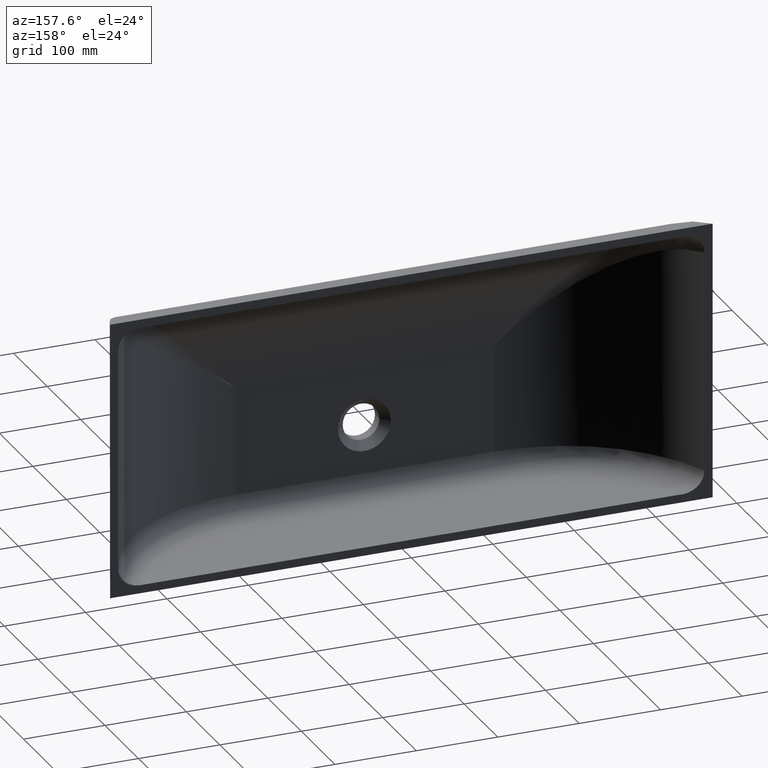
[diagram: clean part render]
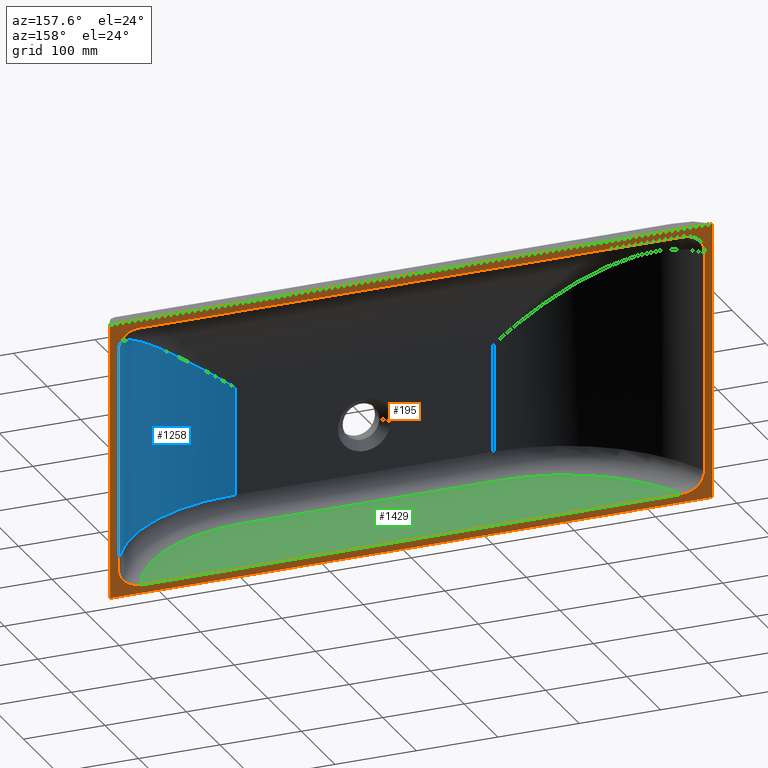
[diagram: same view with three faces highlighted in distinct colors, each labeled with its STEP entity id]
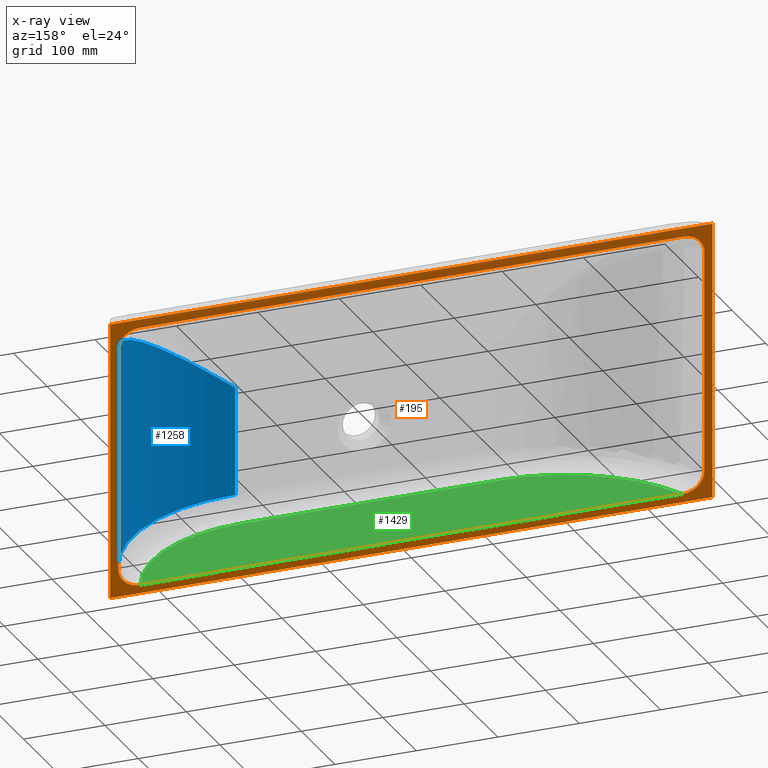
[diagram: x-ray of the same camera — body ghosted, the three highlighted faces saturated]
A machine part, auxiliary view with three faces highlighted in distinct colors.
The next image is the same camera in x-ray (body ghosted, the three faces saturated) — at least one of them is partly hidden behind the body in this view.
Their STEP definitions:

[orange] entity #195 — the highlighted planar face has unit normal (0, 1, 0).
#21 = LINE ( 'NONE', #472, #1221 ) ;
#27 = FACE_BOUND ( 'NONE', #1143, .T. ) ;
#29 = CARTESIAN_POINT ( 'NONE',  ( 348.3895411528305317, -0.0000000000000000000, -80.62143452831799095 ) ) ;
#38 = CARTESIAN_POINT ( 'NONE',  ( 359.0686564458361545, -0.0000000000000000000, -66.76503196918336869 ) ) ;
#41 = CARTESIAN_POINT ( 'NONE',  ( 355.1200221693183607, -0.0000000000000000000, 225.0966133933005437 ) ) ;
#46 = VECTOR ( 'NONE', #1389, 1000.000000000000000 ) ;
#50 = CARTESIAN_POINT ( 'NONE',  ( 342.5883606983367713, 0.0000000000000000000, 233.6839331609355384 ) ) ;
#62 = CARTESIAN_POINT ( 'NONE',  ( -359.0399139386469187, 0.0000000000000000000, -66.70083775692104666 ) ) ;
#72 = CARTESIAN_POINT ( 'NONE',  ( -351.1611666309310067, -0.0000000000000000000, -78.58841101999801992 ) ) ;
#79 = ORIENTED_EDGE ( 'NONE', *, *, #896, .T. ) ;
#98 = CARTESIAN_POINT ( 'NONE',  ( -343.3290508111766712, -0.0000000000000000000, 233.4342823738736854 ) ) ;
#102 = EDGE_CURVE ( 'NONE', #196, #333, #1214, .T. ) ;
#104 = AXIS2_PLACEMENT_3D ( 'NONE', #263, #710, #1164 ) ;
#105 = CARTESIAN_POINT ( 'NONE',  ( -357.6648853119097566, 0.0000000000000000000, 220.9878644566088326 ) ) ;
#140 = CARTESIAN_POINT ( 'NONE',  ( 342.6761017257804269, 0.0000000000000000000, -83.38376121986615885 ) ) ;
#147 = CARTESIAN_POINT ( 'NONE',  ( 334.5575919093448078, 0.0000000000000000000, 234.8659477326087028 ) ) ;
#148 = CARTESIAN_POINT ( 'NONE',  ( 357.4471733484225524, -0.0000000000000000000, -70.67796711995694636 ) ) ;
#151 = CARTESIAN_POINT ( 'NONE',  ( 358.1663957947852168, 0.0000000000000000000, 219.8558883980429357 ) ) ;
#159 = CARTESIAN_POINT ( 'NONE',  ( 347.0904349358409036, -0.0000000000000000000, 231.8707645307098915 ) ) ;
#170 = VECTOR ( 'NONE', #655, 1000.000000000000000 ) ;
#172 = CARTESIAN_POINT ( 'NONE',  ( -359.9999999999998863, 0.0000000000000000000, -61.71661987296787544 ) ) ;
#183 = CARTESIAN_POINT ( 'NONE',  ( -353.8854998833139689, 0.0000000000000000000, -75.92129165977740968 ) ) ;
#191 = CARTESIAN_POINT ( 'NONE',  ( -336.4902040733991271, -0.0000000000000000000, -84.85252241376277027 ) ) ;
#195 = ADVANCED_FACE ( 'NONE', ( #27, #826 ), #1268, .T. ) ;
#196 = VERTEX_POINT ( 'NONE', #147 ) ;
#206 = CARTESIAN_POINT ( 'NONE',  ( 500000.0000000000582, 0.0000000000000000000, 234.8659477326087028 ) ) ;
#210 = LINE ( 'NONE', #659, #809 ) ;
#215 = CARTESIAN_POINT ( 'NONE',  ( -340.9861506341964628, 0.0000000000000000000, 234.1221465754319411 ) ) ;
#221 = CARTESIAN_POINT ( 'NONE',  ( -356.0378243935473961, -0.0000000000000000000, 223.8204497145435710 ) ) ;
#223 = VERTEX_POINT ( 'NONE', #718 ) ;
#242 = CARTESIAN_POINT ( 'NONE',  ( -359.9999999999999432, 0.0000000000000000000, 210.7565910530891813 ) ) ;
#255 = CARTESIAN_POINT ( 'NONE',  ( 341.0463218983089746, -0.0000000000000000000, -83.90048100848551371 ) ) ;
#263 = CARTESIAN_POINT ( 'NONE',  ( -369.9999999999999432, 0.0000000000000000000, -94.99999999999997158 ) ) ;
#264 = CARTESIAN_POINT ( 'NONE',  ( 356.1803518207477168, 0.0000000000000000000, -72.91272993035808270 ) ) ;
#267 = CARTESIAN_POINT ( 'NONE',  ( 358.7482234836583643, -0.0000000000000000000, 218.3295569175664923 ) ) ;
#271 = CARTESIAN_POINT ( 'NONE',  ( -333.0834886143811104, 0.0000000000000000000, -85.00000000000001421 ) ) ;
#274 = CARTESIAN_POINT ( 'NONE',  ( 349.8499585675151593, 0.0000000000000000000, 230.1235065629221879 ) ) ;
#292 = CARTESIAN_POINT ( 'NONE',  ( -354.9746761880625741, -0.0000000000000000000, -74.60223992431073725 ) ) ;
#295 = ORIENTED_EDGE ( 'NONE', *, *, #729, .F. ) ;
#299 = ORIENTED_EDGE ( 'NONE', *, *, #350, .T. ) ;
#300 = CARTESIAN_POINT ( 'NONE',  ( -341.4859861520152435, 0.0000000000000000000, -83.78178120603477907 ) ) ;
#302 = LINE ( 'NONE', #755, #1290 ) ;
#323 = CARTESIAN_POINT ( 'NONE',  ( -336.1955654665176780, -1.110223024625156540E-13, 234.8659477326088165 ) ) ;
#325 = CARTESIAN_POINT ( 'NONE',  ( 369.9999999999999432, 1.110223024625156540E-13, -94.99999999999997158 ) ) ;
#330 = CARTESIAN_POINT ( 'NONE',  ( -351.7513724952075336, 0.0000000000000000000, 228.6520623874257296 ) ) ;
#333 = VERTEX_POINT ( 'NONE', #542 ) ;
#343 = CARTESIAN_POINT ( 'NONE',  ( -359.9573725105294670, -0.0000000000000000000, 212.3938530285401214 ) ) ;
#345 = EDGE_LOOP ( 'NONE', ( #644, #1242, #295, #507 ) ) ;
#350 = EDGE_CURVE ( 'NONE', #333, #1192, #762, .T. ) ;
#353 = DIRECTION ( 'NONE',  ( -1.000000000000000000, -0.0000000000000000000, -0.0000000000000000000 ) ) ;
#360 = CARTESIAN_POINT ( 'NONE',  ( 336.4889488037461547, 3.408658232435682890E-27, -84.85221555243336411 ) ) ;
#369 = CARTESIAN_POINT ( 'NONE',  ( 353.0468653776340489, -0.0000000000000000000, -76.90002911540658204 ) ) ;
#372 = CARTESIAN_POINT ( 'NONE',  ( 359.8311072258802028, -0.0000000000000000000, 214.0061384558240434 ) ) ;
#379 = CARTESIAN_POINT ( 'NONE',  ( 360.0000000000000000, -0.0000000000000000000, -60.85965492189079384 ) ) ;
#383 = CARTESIAN_POINT ( 'NONE',  ( 351.7726113454745018, -0.0000000000000000000, 228.6335284941201564 ) ) ;
#392 = CARTESIAN_POINT ( 'NONE',  ( 336.1945053448616818, 0.0000000000000000000, 234.8659477326097829 ) ) ;
#401 = CARTESIAN_POINT ( 'NONE',  ( -358.0000461229284952, 0.0000000000000000000, -69.50511991093881647 ) ) ;
#410 = ORIENTED_EDGE ( 'NONE', *, *, #909, .T. ) ;
#412 = CARTESIAN_POINT ( 'NONE',  ( -346.2177575054271301, -0.0000000000000000000, -81.91599004461072298 ) ) ;
#419 = CARTESIAN_POINT ( 'NONE',  ( 500000.0000000000582, 0.0000000000000000000, -85.00000000000001421 ) ) ;
#440 = CARTESIAN_POINT ( 'NONE',  ( -349.1470207147141878, -0.0000000000000000000, 230.6131757724307647 ) ) ;
#445 = CARTESIAN_POINT ( 'NONE',  ( -359.6486645743274835, 0.0000000000000000000, 214.8280680519326609 ) ) ;
#453 = CARTESIAN_POINT ( 'NONE',  ( -359.9999999999999432, 0.0000000000000000000, 210.7565910530891813 ) ) ;
#463 = CARTESIAN_POINT ( 'NONE',  ( -359.9999999999999432, 0.0000000000000000000, -60.00000000000000000 ) ) ;
#472 = CARTESIAN_POINT ( 'NONE',  ( 359.9999999999999432, 0.0000000000000000000, -94.99999999999997158 ) ) ;
#479 = CARTESIAN_POINT ( 'NONE',  ( 349.0962205603117923, 0.0000000000000000000, -80.15468116641021368 ) ) ;
#488 = CARTESIAN_POINT ( 'NONE',  ( 359.6235899812842831, -0.0000000000000000000, -64.27057381929479618 ) ) ;
#492 = CARTESIAN_POINT ( 'NONE',  ( 354.6065031600872430, 0.0000000000000000000, 225.7396344057791850 ) ) ;
#499 = LINE ( 'NONE', #953, #46 ) ;
#502 = CARTESIAN_POINT ( 'NONE',  ( 341.0122698701584341, -0.0000000000000000000, 234.1160088128760606 ) ) ;
#507 = ORIENTED_EDGE ( 'NONE', *, *, #748, .T. ) ;
#512 = CARTESIAN_POINT ( 'NONE',  ( -358.6306472494943591, -0.0000000000000000000, -67.91769269533502040 ) ) ;
#521 = CARTESIAN_POINT ( 'NONE',  ( -350.5026815536238587, 0.0000000000000000000, -79.12308114760142530 ) ) ;
#525 = VERTEX_POINT ( 'NONE', #898 ) ;
#534 = VERTEX_POINT ( 'NONE', #1335 ) ;
#542 = CARTESIAN_POINT ( 'NONE',  ( -334.5575919090038042, 0.0000000000000000000, 234.8659477326087028 ) ) ;
#549 = CARTESIAN_POINT ( 'NONE',  ( -343.7166584699947407, 0.0000000000000000000, 233.2990623864859003 ) ) ;
#557 = CARTESIAN_POINT ( 'NONE',  ( -358.6498878581713257, -0.0000000000000000000, 218.7665188289565208 ) ) ;
#590 = CARTESIAN_POINT ( 'NONE',  ( 344.6828001676360600, -0.0000000000000000000, -82.64557072959624406 ) ) ;
#598 = CARTESIAN_POINT ( 'NONE',  ( 357.6357226451913789, 0.0000000000000000000, -70.29593999696335516 ) ) ;
#601 = CARTESIAN_POINT ( 'NONE',  ( 357.3459723623481068, -0.0000000000000000000, 221.7108776634499634 ) ) ;
#609 = CARTESIAN_POINT ( 'NONE',  ( 345.6346243771214972, -0.0000000000000000000, 232.5777224361956144 ) ) ;
#621 = CARTESIAN_POINT ( 'NONE',  ( -359.8134236729908935, -0.0000000000000000000, -63.40105010403754449 ) ) ;
#631 = CARTESIAN_POINT ( 'NONE',  ( -353.0248573223331618, -0.0000000000000000000, -76.86222272598094207 ) ) ;
#640 = CARTESIAN_POINT ( 'NONE',  ( -334.7967668173501465, -0.0000000000000000000, -84.99999999999918998 ) ) ;
#644 = ORIENTED_EDGE ( 'NONE', *, *, #690, .T. ) ;
#652 = ORIENTED_EDGE ( 'NONE', *, *, #1447, .F. ) ;
#655 = DIRECTION ( 'NONE',  ( -1.000000000000000000, -0.0000000000000000000, -0.0000000000000000000 ) ) ;
#659 = CARTESIAN_POINT ( 'NONE',  ( -369.9999999999999432, 0.0000000000000000000, -94.99999999999997158 ) ) ;
#660 = VERTEX_POINT ( 'NONE', #730 ) ;
#664 = CARTESIAN_POINT ( 'NONE',  ( -342.1614534368724776, -0.0000000000000000000, 233.8014490921371191 ) ) ;
#669 = CARTESIAN_POINT ( 'NONE',  ( -356.4801871333822305, 0.0000000000000000000, 223.1361404856969557 ) ) ;
#680 = VERTEX_POINT ( 'NONE', #1218 ) ;
#689 = CARTESIAN_POINT ( 'NONE',  ( 359.9999999999999432, 0.0000000000000000000, 210.7565910530891813 ) ) ;
#690 = EDGE_CURVE ( 'NONE', #680, #534, #210, .T. ) ;
#702 = CARTESIAN_POINT ( 'NONE',  ( 341.4551212262263107, 0.0000000000000000000, -83.78101600029522444 ) ) ;
#710 = DIRECTION ( 'NONE',  ( 0.0000000000000000000, 1.000000000000000000, 0.0000000000000000000 ) ) ;
#711 = CARTESIAN_POINT ( 'NONE',  ( 356.8378277319164340, -0.0000000000000000000, -71.81001077385758435 ) ) ;
#715 = CARTESIAN_POINT ( 'NONE',  ( 358.6120215542943015, 0.0000000000000000000, 218.7170551454429415 ) ) ;
#718 = CARTESIAN_POINT ( 'NONE',  ( 369.9999999999998295, 0.0000000000000000000, 245.0000000000000000 ) ) ;
#722 = CARTESIAN_POINT ( 'NONE',  ( 349.1755103230971145, -0.0000000000000000000, 230.5829724364477897 ) ) ;
#729 = EDGE_CURVE ( 'NONE', #525, #223, #1330, .T. ) ;
#730 = CARTESIAN_POINT ( 'NONE',  ( 359.9999999999999432, 0.0000000000000000000, -60.00000000000000000 ) ) ;
#744 = CARTESIAN_POINT ( 'NONE',  ( -354.7096248752375232, 0.0000000000000000000, -74.94044059489576171 ) ) ;
#748 = EDGE_CURVE ( 'NONE', #525, #680, #921, .T. ) ;
#754 = CARTESIAN_POINT ( 'NONE',  ( -339.8325795105009206, -0.0000000000000000000, -84.22680600285718810 ) ) ;
#755 = CARTESIAN_POINT ( 'NONE',  ( -369.9999999999999432, 0.0000000000000000000, 245.0000000000000000 ) ) ;
#762 = B_SPLINE_CURVE_WITH_KNOTS ( 'NONE', 3,
 ( #1328, #323, #778, #1223, #215, #664, #1121, #98, #549, #1008, #1439, #440, #897, #1334, #330, #784, #1230, #221, #669, #1128, #105, #557, #1014, #1444, #445, #901, #1339, #343, #798, #453 ),
 .UNSPECIFIED., .F., .F.,
 ( 4, 2, 2, 2, 2, 2, 2, 2, 2, 2, 2, 2, 2, 2, 4 ),
 ( 0.0000000000000000000, 0.004847727114167849245, 0.007271590671251854966, 0.008483522449793858694, 0.009695454228335861555, 0.01454318134250378799, 0.01696704489958774861, 0.01939090845667171617, 0.02423863557083957149, 0.02666249912792345231, 0.02908636268500733660, 0.03393408979917509477, 0.03514602157771707508, 0.03635795335625905539, 0.03878181691334301601 ),
 .UNSPECIFIED. ) ;
#778 = CARTESIAN_POINT ( 'NONE',  ( -337.8099957323864260, -0.0000000000000000000, 234.7239648741233680 ) ) ;
#780 = DIRECTION ( 'NONE',  ( 0.0000000000000000000, 0.0000000000000000000, 1.000000000000000000 ) ) ;
#784 = CARTESIAN_POINT ( 'NONE',  ( -353.5450942146883335, -0.0000000000000000000, 226.9984824901665661 ) ) ;
#798 = CARTESIAN_POINT ( 'NONE',  ( -360.0000000000002274, 0.0000000000000000000, 211.5771097080143761 ) ) ;
#807 = B_SPLINE_CURVE_WITH_KNOTS ( 'NONE', 3,
 ( #1184, #172, #621, #1082, #62, #512, #968, #1402, #401, #857, #1298, #292, #744, #1193, #183, #631, #1092, #72, #521, #976, #1410, #412, #866, #1308, #300, #754, #1202, #191, #640, #1101 ),
 .UNSPECIFIED., .F., .F.,
 ( 4, 2, 2, 2, 2, 2, 2, 2, 2, 2, 2, 2, 2, 2, 4 ),
 ( 0.0000000000000000000, 0.005074884174763193492, 0.007612326262144790238, 0.008881047305835615066, 0.01014976834952643903, 0.01522465252428985109, 0.01649337356798069587, 0.01776209461167154238, 0.02029953669905323194, 0.02283697878643492149, 0.02537442087381661451, 0.03044930504857997280, 0.03298674713596164154, 0.03552418922334332069, 0.04059907339810666510 ),
 .UNSPECIFIED. ) ;
#809 = VECTOR ( 'NONE', #1117, 1000.000000000000000 ) ;
#818 = CARTESIAN_POINT ( 'NONE',  ( 338.9882169067009272, -0.0000000000000000000, -84.41341266595517823 ) ) ;
#819 = EDGE_CURVE ( 'NONE', #660, #1211, #21, .T. ) ;
#826 = FACE_OUTER_BOUND ( 'NONE', #345, .T. ) ;
#827 = CARTESIAN_POINT ( 'NONE',  ( 354.1895679334932083, 0.0000000000000000000, -75.65353407801406149 ) ) ;
#830 = CARTESIAN_POINT ( 'NONE',  ( 359.3315951951572629, -0.0000000000000000000, 216.3798729840156625 ) ) ;
#836 = CARTESIAN_POINT ( 'NONE',  ( 359.9999999999999432, 0.0000000000000000000, -60.00000000000000000 ) ) ;
#839 = CARTESIAN_POINT ( 'NONE',  ( 351.1517789581394027, 0.0000000000000000000, 229.1524080650737005 ) ) ;
#848 = CARTESIAN_POINT ( 'NONE',  ( 334.5575919093448078, 0.0000000000000000000, 234.8659477326087028 ) ) ;
#857 = CARTESIAN_POINT ( 'NONE',  ( -357.1130189481752382, -0.0000000000000000000, -71.43280911382289844 ) ) ;
#866 = CARTESIAN_POINT ( 'NONE',  ( -344.6882239388528433, 0.0000000000000000000, -82.64231516237474295 ) ) ;
#875 = DIRECTION ( 'NONE',  ( -1.000000000000000000, -0.0000000000000000000, -0.0000000000000000000 ) ) ;
#877 = ORIENTED_EDGE ( 'NONE', *, *, #819, .T. ) ;
#893 = ORIENTED_EDGE ( 'NONE', *, *, #102, .T. ) ;
#896 = EDGE_CURVE ( 'NONE', #1211, #196, #1142, .T. ) ;
#897 = CARTESIAN_POINT ( 'NONE',  ( -349.8173398898631490, 0.0000000000000000000, 230.1587083217750944 ) ) ;
#898 = CARTESIAN_POINT ( 'NONE',  ( 369.9999999999999432, 1.110223024625156540E-13, -94.99999999999997158 ) ) ;
#901 = CARTESIAN_POINT ( 'NONE',  ( -359.7765210900285524, -0.0000000000000000000, 214.0188731016851875 ) ) ;
#909 = EDGE_CURVE ( 'NONE', #1301, #1414, #807, .T. ) ;
#912 = ORIENTED_EDGE ( 'NONE', *, *, #948, .F. ) ;
#920 = CARTESIAN_POINT ( 'NONE',  ( 333.0834886143811673, 0.0000000000000000000, -85.00000000000001421 ) ) ;
#921 = LINE ( 'NONE', #1358, #1027 ) ;
#929 = DIRECTION ( 'NONE',  ( 0.0000000000000000000, 0.0000000000000000000, 1.000000000000000000 ) ) ;
#936 = CARTESIAN_POINT ( 'NONE',  ( 350.4693002451167558, -0.0000000000000000000, -79.14922701247084547 ) ) ;
#938 = CARTESIAN_POINT ( 'NONE',  ( 359.9999999999999432, 0.0000000000000000000, 210.7565910530891813 ) ) ;
#944 = CARTESIAN_POINT ( 'NONE',  ( 359.7650612715473812, 0.0000000000000000000, -63.42001095077102946 ) ) ;
#947 = CARTESIAN_POINT ( 'NONE',  ( 353.5277075101101900, -0.0000000000000000000, 226.9578747974769328 ) ) ;
#948 = EDGE_CURVE ( 'NONE', #1324, #1414, #1417, .T. ) ;
#953 = CARTESIAN_POINT ( 'NONE',  ( -359.9999999999999432, 0.0000000000000000000, -94.99999999999997158 ) ) ;
#956 = CARTESIAN_POINT ( 'NONE',  ( 340.2143009028646361, 0.0000000000000000000, 234.2956580976439795 ) ) ;
#962 = VECTOR ( 'NONE', #780, 1000.000000000000000 ) ;
#968 = CARTESIAN_POINT ( 'NONE',  ( -358.4827404581737369, 0.0000000000000000000, -68.32104275294210538 ) ) ;
#976 = CARTESIAN_POINT ( 'NONE',  ( -349.1300258887967516, -0.0000000000000000000, -80.13154753985712375 ) ) ;
#1008 = CARTESIAN_POINT ( 'NONE',  ( -345.6263311383474957, -0.0000000000000000000, 232.5822873723458599 ) ) ;
#1014 = CARTESIAN_POINT ( 'NONE',  ( -359.1499049582147336, -0.0000000000000000000, 217.2283022879672671 ) ) ;
#1019 = B_SPLINE_CURVE_WITH_KNOTS ( 'NONE', 3,
 ( #1042, #1364, #360, #818, #1261, #255, #702, #1157, #140, #590, #1051, #29, #479, #936, #1372, #369, #827, #1269, #264, #711, #1165, #148, #598, #1058, #38, #488, #944, #1382, #379, #836 ),
 .UNSPECIFIED., .F., .F.,
 ( 4, 2, 2, 2, 2, 2, 2, 2, 2, 2, 2, 2, 2, 2, 4 ),
 ( 2.048553748347995105E-14, 0.005074824284124657310, 0.007612236426176742857, 0.008880942497202786931, 0.01014964856822882927, 0.01522447285233335251, 0.01776188499438561760, 0.02029929713643787922, 0.02537412142054249614, 0.02791153356259480633, 0.02918023963362094408, 0.03044894570464708183, 0.03552376998875152875, 0.03806118213080376955, 0.04059859427285599648 ),
 .UNSPECIFIED. ) ;
#1024 = VECTOR ( 'NONE', #875, 1000.000000000000000 ) ;
#1027 = VECTOR ( 'NONE', #353, 1000.000000000000000 ) ;
#1039 = EDGE_CURVE ( 'NONE', #223, #534, #302, .T. ) ;
#1042 = CARTESIAN_POINT ( 'NONE',  ( 333.0834886143811673, 0.0000000000000000000, -85.00000000000001421 ) ) ;
#1051 = CARTESIAN_POINT ( 'NONE',  ( 346.2115587294923102, -0.0000000000000000000, -81.91819346273479141 ) ) ;
#1058 = CARTESIAN_POINT ( 'NONE',  ( 358.5253370463913711, -0.0000000000000000000, -68.36715573414403480 ) ) ;
#1061 = CARTESIAN_POINT ( 'NONE',  ( 356.5429540486287010, -0.0000000000000000000, 223.1135846400030402 ) ) ;
#1069 = CARTESIAN_POINT ( 'NONE',  ( 343.3612177800625318, -0.0000000000000000000, 233.4331847124630031 ) ) ;
#1082 = CARTESIAN_POINT ( 'NONE',  ( -359.2668976767018307, -0.0000000000000000000, -65.88168887244114558 ) ) ;
#1087 = ORIENTED_EDGE ( 'NONE', *, *, #1380, .T. ) ;
#1092 = CARTESIAN_POINT ( 'NONE',  ( -352.4222519565458924, 0.0000000000000000000, -77.45797901204406344 ) ) ;
#1101 = CARTESIAN_POINT ( 'NONE',  ( -333.0834886143811104, 0.0000000000000000000, -85.00000000000001421 ) ) ;
#1117 = DIRECTION ( 'NONE',  ( 0.0000000000000000000, 0.0000000000000000000, 1.000000000000000000 ) ) ;
#1121 = CARTESIAN_POINT ( 'NONE',  ( -342.5516964513504377, 0.0000000000000000000, 233.6853555863663416 ) ) ;
#1128 = CARTESIAN_POINT ( 'NONE',  ( -357.2971049053811612, -0.0000000000000000000, 221.7138794346790007 ) ) ;
#1142 = B_SPLINE_CURVE_WITH_KNOTS ( 'NONE', 3,
 ( #938, #1375, #372, #830, #1272, #267, #715, #1168, #151, #601, #1061, #41, #492, #947, #1385, #383, #839, #1281, #274, #722, #1175, #159, #609, #1069, #50, #502, #956, #1393, #392, #848 ),
 .UNSPECIFIED., .F., .F.,
 ( 4, 2, 2, 2, 2, 2, 2, 2, 2, 2, 2, 2, 2, 2, 4 ),
 ( 0.0000000000000000000, 0.004847773143508090493, 0.007271659715262153954, 0.008483603001139185251, 0.009695546287016215681, 0.01454331943052447444, 0.01696720600227865153, 0.01939109257403282688, 0.02181497914578700223, 0.02302692243166416103, 0.02423886571754131636, 0.02908663886104992380, 0.03151052543280420670, 0.03393441200455849655, 0.03878218514806706929 ),
 .UNSPECIFIED. ) ;
#1143 = EDGE_LOOP ( 'NONE', ( #877, #79, #893, #299, #652, #410, #912, #1087 ) ) ;
#1157 = CARTESIAN_POINT ( 'NONE',  ( 342.2695050672462003, -0.0000000000000000000, -83.52285559477631693 ) ) ;
#1164 = DIRECTION ( 'NONE',  ( 0.0000000000000000000, -0.0000000000000000000, 1.000000000000000000 ) ) ;
#1165 = CARTESIAN_POINT ( 'NONE',  ( 357.0485656920092197, 0.0000000000000000000, -71.43447197357639311 ) ) ;
#1168 = CARTESIAN_POINT ( 'NONE',  ( 358.3212302895880157, -0.0000000000000000000, 219.4797644280571944 ) ) ;
#1175 = CARTESIAN_POINT ( 'NONE',  ( 348.8308066239244454, 0.0000000000000000000, 230.8056299325390057 ) ) ;
#1184 = CARTESIAN_POINT ( 'NONE',  ( -359.9999999999999432, 0.0000000000000000000, -60.00000000000000000 ) ) ;
#1192 = VERTEX_POINT ( 'NONE', #242 ) ;
#1193 = CARTESIAN_POINT ( 'NONE',  ( -354.1651568503348244, -0.0000000000000000000, -75.59975101753414606 ) ) ;
#1202 = CARTESIAN_POINT ( 'NONE',  ( -339.0007146480575670, 0.0000000000000000000, -84.41095270668880346 ) ) ;
#1203 = DIRECTION ( 'NONE',  ( -1.000000000000000000, -0.0000000000000000000, -0.0000000000000000000 ) ) ;
#1211 = VERTEX_POINT ( 'NONE', #689 ) ;
#1214 = LINE ( 'NONE', #206, #170 ) ;
#1218 = CARTESIAN_POINT ( 'NONE',  ( -369.9999999999999432, 0.0000000000000000000, -94.99999999999997158 ) ) ;
#1221 = VECTOR ( 'NONE', #929, 1000.000000000000000 ) ;
#1223 = CARTESIAN_POINT ( 'NONE',  ( -340.1965267294074806, -0.0000000000000000000, 234.2992256710081449 ) ) ;
#1230 = CARTESIAN_POINT ( 'NONE',  ( -354.6173171233091352, 0.0000000000000000000, 225.7910974972080851 ) ) ;
#1242 = ORIENTED_EDGE ( 'NONE', *, *, #1039, .F. ) ;
#1261 = CARTESIAN_POINT ( 'NONE',  ( 339.8152177205166140, 0.0000000000000000000, -84.23072450708151848 ) ) ;
#1268 = PLANE ( 'NONE',  #104 ) ;
#1269 = CARTESIAN_POINT ( 'NONE',  ( 355.7073551750506795, -0.0000000000000000000, -73.61870625463721751 ) ) ;
#1272 = CARTESIAN_POINT ( 'NONE',  ( 359.1237691599417872, 0.0000000000000000000, 217.1640883381752758 ) ) ;
#1281 = CARTESIAN_POINT ( 'NONE',  ( 350.1804342888220845, -0.0000000000000000000, 229.8862954756433794 ) ) ;
#1290 = VECTOR ( 'NONE', #1203, 1000.000000000000000 ) ;
#1298 = CARTESIAN_POINT ( 'NONE',  ( -356.2478330782238345, -0.0000000000000000000, -72.88868853015544857 ) ) ;
#1301 = VERTEX_POINT ( 'NONE', #463 ) ;
#1308 = CARTESIAN_POINT ( 'NONE',  ( -342.2994484719005754, -0.0000000000000000000, -83.52293748964234510 ) ) ;
#1324 = VERTEX_POINT ( 'NONE', #920 ) ;
#1328 = CARTESIAN_POINT ( 'NONE',  ( -334.5575919090038042, 0.0000000000000000000, 234.8659477326087028 ) ) ;
#1330 = LINE ( 'NONE', #325, #962 ) ;
#1334 = CARTESIAN_POINT ( 'NONE',  ( -351.1186517424179101, -0.0000000000000000000, 229.1792515563821837 ) ) ;
#1335 = CARTESIAN_POINT ( 'NONE',  ( -369.9999999999999432, 0.0000000000000000000, 245.0000000000000000 ) ) ;
#1339 = CARTESIAN_POINT ( 'NONE',  ( -359.8297129865466673, 0.0000000000000000000, 213.6133247529640471 ) ) ;
#1358 = CARTESIAN_POINT ( 'NONE',  ( -369.9999999999999432, 0.0000000000000000000, -94.99999999999997158 ) ) ;
#1364 = CARTESIAN_POINT ( 'NONE',  ( 334.7985715436109899, -4.840572387365682516E-11, -85.00000000000001421 ) ) ;
#1372 = CARTESIAN_POINT ( 'NONE',  ( 351.1393078714874036, 0.0000000000000000000, -78.60701037264574609 ) ) ;
#1375 = CARTESIAN_POINT ( 'NONE',  ( 359.9999999999999432, -0.0000000000000000000, 212.3957303358398008 ) ) ;
#1380 = EDGE_CURVE ( 'NONE', #1324, #660, #1019, .T. ) ;
#1382 = CARTESIAN_POINT ( 'NONE',  ( 359.9528263636627798, -0.0000000000000000000, -61.71557337262618859 ) ) ;
#1385 = CARTESIAN_POINT ( 'NONE',  ( 352.9605730739934870, 0.0000000000000000000, 227.5362590373806597 ) ) ;
#1389 = DIRECTION ( 'NONE',  ( 0.0000000000000000000, 0.0000000000000000000, 1.000000000000000000 ) ) ;
#1393 = CARTESIAN_POINT ( 'NONE',  ( 337.8133963063303895, -0.0000000000000000000, 234.7241583891791379 ) ) ;
#1402 = CARTESIAN_POINT ( 'NONE',  ( -358.1676376970904130, -0.0000000000000000000, -69.11413955050241498 ) ) ;
#1410 = CARTESIAN_POINT ( 'NONE',  ( -348.4127165787937201, 0.0000000000000000000, -80.60687892571208124 ) ) ;
#1414 = VERTEX_POINT ( 'NONE', #271 ) ;
#1417 = LINE ( 'NONE', #419, #1024 ) ;
#1439 = CARTESIAN_POINT ( 'NONE',  ( -347.0795429684428086, -0.0000000000000000000, 231.8752237816585762 ) ) ;
#1444 = CARTESIAN_POINT ( 'NONE',  ( -359.5738880048846227, -0.0000000000000000000, 215.2319707141568301 ) ) ;
#1447 = EDGE_CURVE ( 'NONE', #1301, #1192, #499, .T. ) ;

[blue] entity #1258 — the highlighted cylindrical surface (partial cylindrical patch) has radius 214.806 mm, axis along (0, 0, 1).
#13 = DIRECTION ( 'NONE',  ( 1.000000000000000000, 0.0000000000000000000, 0.0000000000000000000 ) ) ;
#21 = LINE ( 'NONE', #472, #1221 ) ;
#61 = CARTESIAN_POINT ( 'NONE',  ( 159.7334072754354111, -139.9976181025721473, 74.26763240980189096 ) ) ;
#65 = EDGE_CURVE ( 'NONE', #991, #336, #1130, .T. ) ;
#70 = CARTESIAN_POINT ( 'NONE',  ( 241.5257011740517612, -123.4329464672078700, 135.4394637946088835 ) ) ;
#78 = CARTESIAN_POINT ( 'NONE',  ( 298.1777809516835305, -88.51238910748364219, 175.8821539123541413 ) ) ;
#86 = CARTESIAN_POINT ( 'NONE',  ( 343.4211156679909323, -34.73871701973548909, 203.9536900448720189 ) ) ;
#108 = CARTESIAN_POINT ( 'NONE',  ( 158.6406308044475111, -140.0000000000000000, -94.99999999999997158 ) ) ;
#114 = VECTOR ( 'NONE', #559, 1000.000000000000000 ) ;
#124 = CYLINDRICAL_SURFACE ( 'NONE', #1135, 214.8056984386814747 ) ;
#169 = CARTESIAN_POINT ( 'NONE',  ( 158.7944887963418239, -140.0000000000000568, 73.56005910804002212 ) ) ;
#181 = CARTESIAN_POINT ( 'NONE',  ( 222.3885225192835549, -130.3841257974048062, 121.2806794971972550 ) ) ;
#186 = ORIENTED_EDGE ( 'NONE', *, *, #674, .T. ) ;
#188 = CARTESIAN_POINT ( 'NONE',  ( 291.7628099427989241, -93.79924394010477329, 171.4762014280534572 ) ) ;
#199 = CARTESIAN_POINT ( 'NONE',  ( 340.2514791650472148, -39.91678974756060683, 202.2832025098383326 ) ) ;
#287 = ORIENTED_EDGE ( 'NONE', *, *, #819, .F. ) ;
#289 = CARTESIAN_POINT ( 'NONE',  ( 183.4586164444918950, -138.6190489757593980, 92.13689855839810150 ) ) ;
#298 = CARTESIAN_POINT ( 'NONE',  ( 278.6027516919696723, -103.4613422832394605, 162.2655885140227667 ) ) ;
#308 = CARTESIAN_POINT ( 'NONE',  ( 331.0616995359762882, -53.44163234390263995, 197.1016181715538380 ) ) ;
#329 = AXIS2_PLACEMENT_3D ( 'NONE', #1432, #433, #891 ) ;
#336 = VERTEX_POINT ( 'NONE', #889 ) ;
#399 = CARTESIAN_POINT ( 'NONE',  ( 168.6136314554118769, -139.7828142568012026, 80.95917560854276473 ) ) ;
#408 = CARTESIAN_POINT ( 'NONE',  ( 258.0559243902944786, -115.6280848708810964, 147.5160465934159220 ) ) ;
#418 = CARTESIAN_POINT ( 'NONE',  ( 316.3780861575738754, -71.11240681251406670, 187.9940053030376816 ) ) ;
#426 = CARTESIAN_POINT ( 'NONE',  ( 357.8106410740278420, -5.893239973392915942, 210.2122176135002292 ) ) ;
#433 = DIRECTION ( 'NONE',  ( 0.0000000000000000000, 0.0000000000000000000, -1.000000000000000000 ) ) ;
#472 = CARTESIAN_POINT ( 'NONE',  ( 359.9999999999999432, 0.0000000000000000000, -94.99999999999997158 ) ) ;
#510 = CARTESIAN_POINT ( 'NONE',  ( 160.8266879388604309, -139.9904653368437835, 75.09153009201010320 ) ) ;
#519 = CARTESIAN_POINT ( 'NONE',  ( 248.6428092387828883, -120.2528767238725749, 140.6560576509780560 ) ) ;
#528 = CARTESIAN_POINT ( 'NONE',  ( 299.2309678409507114, -87.60667429259544292, 176.5997289983638154 ) ) ;
#537 = CARTESIAN_POINT ( 'NONE',  ( 347.2570270395091256, -28.16244497408395375, 205.9019742135314743 ) ) ;
#559 = DIRECTION ( 'NONE',  ( 0.0000000000000000000, 0.0000000000000000000, 1.000000000000000000 ) ) ;
#575 = CARTESIAN_POINT ( 'NONE',  ( 158.6406308044473974, 74.80569843868146052, -94.99999999999997158 ) ) ;
#620 = CARTESIAN_POINT ( 'NONE',  ( 158.9520776272734395, -139.9998310673102537, 73.67881888533410972 ) ) ;
#629 = CARTESIAN_POINT ( 'NONE',  ( 227.1926927072222213, -128.8312637198708330, 124.8493658064791845 ) ) ;
#638 = CARTESIAN_POINT ( 'NONE',  ( 294.9862789368073095, -91.18606518210286538, 173.6967308570205262 ) ) ;
#648 = CARTESIAN_POINT ( 'NONE',  ( 341.0540990897001734, -38.63645256929548566, 202.7134261610782744 ) ) ;
#660 = VERTEX_POINT ( 'NONE', #730 ) ;
#674 = EDGE_CURVE ( 'NONE', #336, #1211, #1233, .T. ) ;
#689 = CARTESIAN_POINT ( 'NONE',  ( 359.9999999999999432, 0.0000000000000000000, 210.7565910530891813 ) ) ;
#713 = EDGE_CURVE ( 'NONE', #660, #991, #1138, .T. ) ;
#730 = CARTESIAN_POINT ( 'NONE',  ( 359.9999999999999432, 0.0000000000000000000, -60.00000000000000000 ) ) ;
#741 = CARTESIAN_POINT ( 'NONE',  ( 198.1851144582851134, -136.5612584111331387, 103.2044845121376540 ) ) ;
#751 = CARTESIAN_POINT ( 'NONE',  ( 283.0420258205810455, -100.3958403348312061, 165.3998035904188271 ) ) ;
#760 = CARTESIAN_POINT ( 'NONE',  ( 336.1538772937702220, -46.18712812952163915, 200.0259993573504858 ) ) ;
#819 = EDGE_CURVE ( 'NONE', #660, #1211, #21, .T. ) ;
#855 = CARTESIAN_POINT ( 'NONE',  ( 171.0965481087830824, -139.6529314292683637, 82.82967491592386011 ) ) ;
#864 = CARTESIAN_POINT ( 'NONE',  ( 265.0156623508367488, -111.8854746674131349, 152.5549808632362954 ) ) ;
#874 = CARTESIAN_POINT ( 'NONE',  ( 320.1821060338422171, -66.89409556995792627, 190.4242269066726578 ) ) ;
#884 = CARTESIAN_POINT ( 'NONE',  ( 359.9999999999999432, 0.0000000000000000000, 210.7565910530891813 ) ) ;
#889 = CARTESIAN_POINT ( 'NONE',  ( 158.6406308046548475, -139.9999999999999147, 73.44411091323188145 ) ) ;
#891 = DIRECTION ( 'NONE',  ( -1.000000000000000000, 0.0000000000000000000, 0.0000000000000000000 ) ) ;
#929 = DIRECTION ( 'NONE',  ( 0.0000000000000000000, 0.0000000000000000000, 1.000000000000000000 ) ) ;
#966 = CARTESIAN_POINT ( 'NONE',  ( 163.0112097738811769, -139.9618763560601451, 76.73776207548647221 ) ) ;
#970 = CARTESIAN_POINT ( 'NONE',  ( 158.6406308044475111, -140.0000000000000000, -60.00000000000000000 ) ) ;
#974 = CARTESIAN_POINT ( 'NONE',  ( 251.0138301351722134, -119.1415944911333611, 142.3892556520597452 ) ) ;
#984 = CARTESIAN_POINT ( 'NONE',  ( 304.4581570725684401, -83.02229259888048318, 180.1470565071396379 ) ) ;
#991 = VERTEX_POINT ( 'NONE', #970 ) ;
#994 = CARTESIAN_POINT ( 'NONE',  ( 350.1137609841835001, -22.75189831581827349, 207.2303008674101079 ) ) ;
#1034 = DIRECTION ( 'NONE',  ( 0.0000000000000000000, 0.0000000000000000000, 1.000000000000000000 ) ) ;
#1081 = CARTESIAN_POINT ( 'NONE',  ( 159.2646388363566530, -139.9991504810973595, 73.91436650768115157 ) ) ;
#1090 = CARTESIAN_POINT ( 'NONE',  ( 236.7612822250981424, -125.3556399109076409, 131.9287474315778752 ) ) ;
#1099 = CARTESIAN_POINT ( 'NONE',  ( 296.0559591228519594, -90.30166521931616330, 174.4310155224555388 ) ) ;
#1109 = CARTESIAN_POINT ( 'NONE',  ( 342.6400523118312549, -36.04558897882957069, 203.5492746982118604 ) ) ;
#1130 = LINE ( 'NONE', #108, #114 ) ;
#1135 = AXIS2_PLACEMENT_3D ( 'NONE', #575, #1034, #13 ) ;
#1138 = CIRCLE ( 'NONE', #329, 214.8056984386814747 ) ;
#1144 = FACE_OUTER_BOUND ( 'NONE', #1395, .T. ) ;
#1183 = CARTESIAN_POINT ( 'NONE',  ( 158.6406308046548475, -139.9999999999999147, 73.44411091323188145 ) ) ;
#1191 = CARTESIAN_POINT ( 'NONE',  ( 207.9150621329929152, -134.5127117515090731, 110.4968803020896644 ) ) ;
#1200 = CARTESIAN_POINT ( 'NONE',  ( 289.5957761871267166, -95.48724776503057399, 169.9731323932710154 ) ) ;
#1206 = ORIENTED_EDGE ( 'NONE', *, *, #713, .T. ) ;
#1209 = CARTESIAN_POINT ( 'NONE',  ( 337.8154445689507384, -43.71400464423653176, 200.9571558195915770 ) ) ;
#1211 = VERTEX_POINT ( 'NONE', #689 ) ;
#1221 = VECTOR ( 'NONE', #929, 1000.000000000000000 ) ;
#1233 = B_SPLINE_CURVE_WITH_KNOTS ( 'NONE', 3,
 ( #1183, #169, #620, #1081, #61, #510, #966, #1400, #399, #855, #1295, #289, #741, #1191, #181, #629, #1090, #70, #519, #974, #1408, #408, #864, #1305, #298, #751, #1200, #188, #638, #1099, #78, #528, #984, #1416, #418, #874, #1315, #308, #760, #1209, #199, #648, #1109, #86, #537, #994, #1424, #426, #884 ),
 .UNSPECIFIED., .F., .F.,
 ( 4, 2, 1, 1, 1, 2, 2, 2, 2, 2, 2, 2, 2, 2, 2, 2, 2, 2, 2, 2, 2, 2, 2, 2, 2, 4 ),
 ( -9.273592403470564348E-05, 0.0004852315353433312188, 0.001063198994721368217, 0.002219133913477441995, 0.004531003750989589553, 0.009154743426013840432, 0.01840222277606232484, 0.03689718147615932142, 0.07388709887635332152, 0.09238205757645033545, 0.1108770162765473216, 0.1201244956265958147, 0.1293719749766443217, 0.1478669336767412246, 0.1663618923768381552, 0.1756093717268866761, 0.1802331114019110059, 0.1848568510769353357, 0.2033518097770327104, 0.2218467684771300574, 0.2403417271772274599, 0.2495892065272760640, 0.2542129462023003938, 0.2588366858773246681, 0.2773316445774219319, 0.2958266032775191956 ),
 .UNSPECIFIED. ) ;
#1258 = ADVANCED_FACE ( 'NONE', ( #1144 ), #124, .F. ) ;
#1295 = CARTESIAN_POINT ( 'NONE',  ( 178.5277855335870640, -139.1350691455097603, 88.42607464729182709 ) ) ;
#1305 = CARTESIAN_POINT ( 'NONE',  ( 269.5895785471466297, -109.2062013134034544, 155.8432022720342616 ) ) ;
#1315 = CARTESIAN_POINT ( 'NONE',  ( 327.5238752302911962, -58.05862933059101749, 194.9779482906326109 ) ) ;
#1395 = EDGE_LOOP ( 'NONE', ( #1445, #186, #287, #1206 ) ) ;
#1400 = CARTESIAN_POINT ( 'NONE',  ( 164.8801944314933792, -139.9129699107478757, 78.14611826568088304 ) ) ;
#1408 = CARTESIAN_POINT ( 'NONE',  ( 255.7195146597028383, -116.8295037002133654, 145.8186022715851777 ) ) ;
#1416 = CARTESIAN_POINT ( 'NONE',  ( 308.5161315968580880, -79.17654899134750224, 182.8554683853824656 ) ) ;
#1424 = CARTESIAN_POINT ( 'NONE',  ( 355.3905211733892315, -11.61724356834092831, 209.3852770195238691 ) ) ;
#1432 = CARTESIAN_POINT ( 'NONE',  ( 158.6406308044473974, 74.80569843868146052, -60.00000000000000000 ) ) ;
#1445 = ORIENTED_EDGE ( 'NONE', *, *, #65, .T. ) ;

[green] entity #1429 — the highlighted planar face has unit normal (0, 0, -1).
#2 = VECTOR ( 'NONE', #633, 1000.000000000000000 ) ;
#34 = EDGE_CURVE ( 'NONE', #427, #319, #1195, .T. ) ;
#155 = CARTESIAN_POINT ( 'NONE',  ( 500000.0000000000582, -125.0000000000000000, -85.00000000000001421 ) ) ;
#184 = CARTESIAN_POINT ( 'NONE',  ( 500000.0000000000582, -114.9999999999069473, -85.00000000000001421 ) ) ;
#211 = CIRCLE ( 'NONE', #569, 189.8056984386814747 ) ;
#212 = EDGE_LOOP ( 'NONE', ( #903, #241, #1291, #957 ) ) ;
#241 = ORIENTED_EDGE ( 'NONE', *, *, #853, .T. ) ;
#256 = CARTESIAN_POINT ( 'NONE',  ( 158.6406308044473974, 74.80569843868146052, -85.00000000000001421 ) ) ;
#271 = CARTESIAN_POINT ( 'NONE',  ( -333.0834886143811104, 0.0000000000000000000, -85.00000000000001421 ) ) ;
#311 = DIRECTION ( 'NONE',  ( -0.0000000000000000000, -0.0000000000000000000, 1.000000000000000000 ) ) ;
#319 = VERTEX_POINT ( 'NONE', #535 ) ;
#419 = CARTESIAN_POINT ( 'NONE',  ( 500000.0000000000582, 0.0000000000000000000, -85.00000000000001421 ) ) ;
#427 = VERTEX_POINT ( 'NONE', #926 ) ;
#535 = CARTESIAN_POINT ( 'NONE',  ( 158.6406308044475111, -114.9999999999999858, -85.00000000000001421 ) ) ;
#564 = CIRCLE ( 'NONE', #768, 189.8056984386814179 ) ;
#569 = AXIS2_PLACEMENT_3D ( 'NONE', #256, #703, #1159 ) ;
#606 = DIRECTION ( 'NONE',  ( 0.0000000000000000000, 0.0000000000000000000, -1.000000000000000000 ) ) ;
#633 = DIRECTION ( 'NONE',  ( 1.000000000000000000, 1.861033808554954086E-16, 0.0000000000000000000 ) ) ;
#682 = AXIS2_PLACEMENT_3D ( 'NONE', #155, #606, #1065 ) ;
#703 = DIRECTION ( 'NONE',  ( -0.0000000000000000000, -0.0000000000000000000, 1.000000000000000000 ) ) ;
#719 = FACE_OUTER_BOUND ( 'NONE', #212, .T. ) ;
#764 = DIRECTION ( 'NONE',  ( -1.000000000000000000, 0.0000000000000000000, 0.0000000000000000000 ) ) ;
#768 = AXIS2_PLACEMENT_3D ( 'NONE', #1318, #311, #764 ) ;
#853 = EDGE_CURVE ( 'NONE', #319, #1324, #211, .T. ) ;
#875 = DIRECTION ( 'NONE',  ( -1.000000000000000000, -0.0000000000000000000, -0.0000000000000000000 ) ) ;
#903 = ORIENTED_EDGE ( 'NONE', *, *, #34, .T. ) ;
#920 = CARTESIAN_POINT ( 'NONE',  ( 333.0834886143811673, 0.0000000000000000000, -85.00000000000001421 ) ) ;
#926 = CARTESIAN_POINT ( 'NONE',  ( -158.6406308044475111, -114.9999999999999858, -85.00000000000001421 ) ) ;
#948 = EDGE_CURVE ( 'NONE', #1324, #1414, #1417, .T. ) ;
#957 = ORIENTED_EDGE ( 'NONE', *, *, #1076, .T. ) ;
#1024 = VECTOR ( 'NONE', #875, 1000.000000000000000 ) ;
#1065 = DIRECTION ( 'NONE',  ( -1.000000000000000000, 0.0000000000000000000, -0.0000000000000000000 ) ) ;
#1076 = EDGE_CURVE ( 'NONE', #1414, #427, #564, .T. ) ;
#1159 = DIRECTION ( 'NONE',  ( -1.000000000000000000, 0.0000000000000000000, 0.0000000000000000000 ) ) ;
#1172 = PLANE ( 'NONE',  #682 ) ;
#1195 = LINE ( 'NONE', #184, #2 ) ;
#1291 = ORIENTED_EDGE ( 'NONE', *, *, #948, .T. ) ;
#1318 = CARTESIAN_POINT ( 'NONE',  ( -158.6406308044474827, 74.80569843868146052, -85.00000000000001421 ) ) ;
#1324 = VERTEX_POINT ( 'NONE', #920 ) ;
#1414 = VERTEX_POINT ( 'NONE', #271 ) ;
#1417 = LINE ( 'NONE', #419, #1024 ) ;
#1429 = ADVANCED_FACE ( 'NONE', ( #719 ), #1172, .F. ) ;